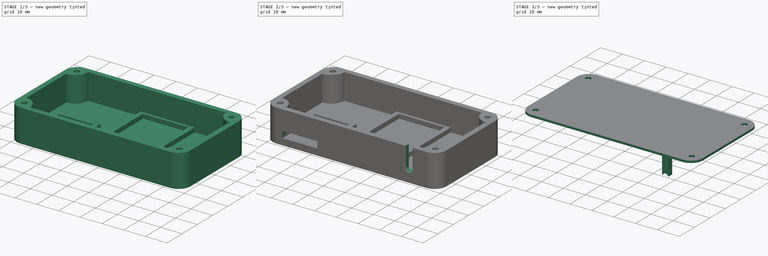
[diagram: build sequence overview — one tinted view per stage of 3, left to right]
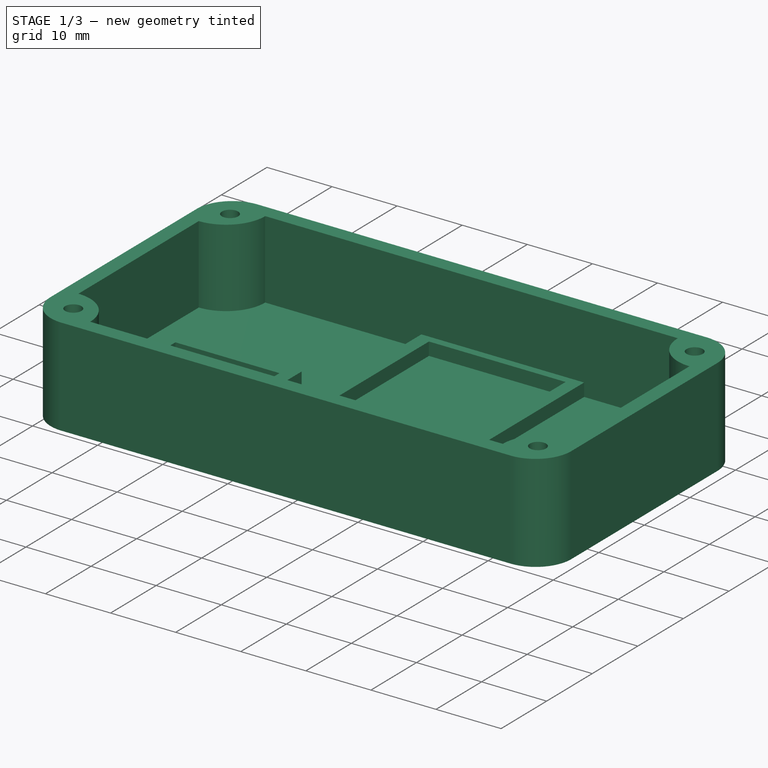
[diagram: stage 1 of 3 — iso view after this stage's code; geometry added in this stage tinted green]
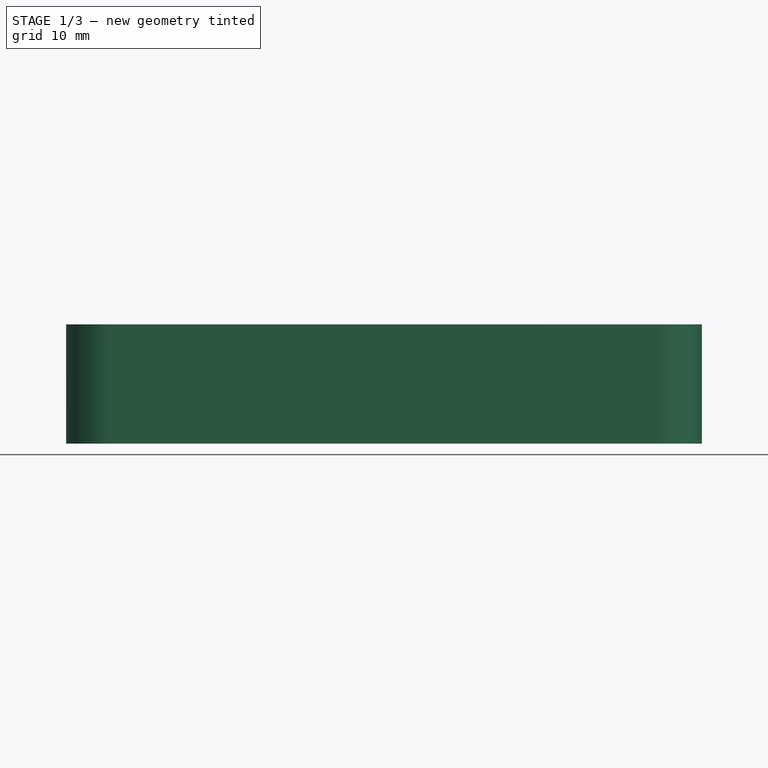
[diagram: stage 1 of 3 — front view after this stage's code; geometry added in this stage tinted green]
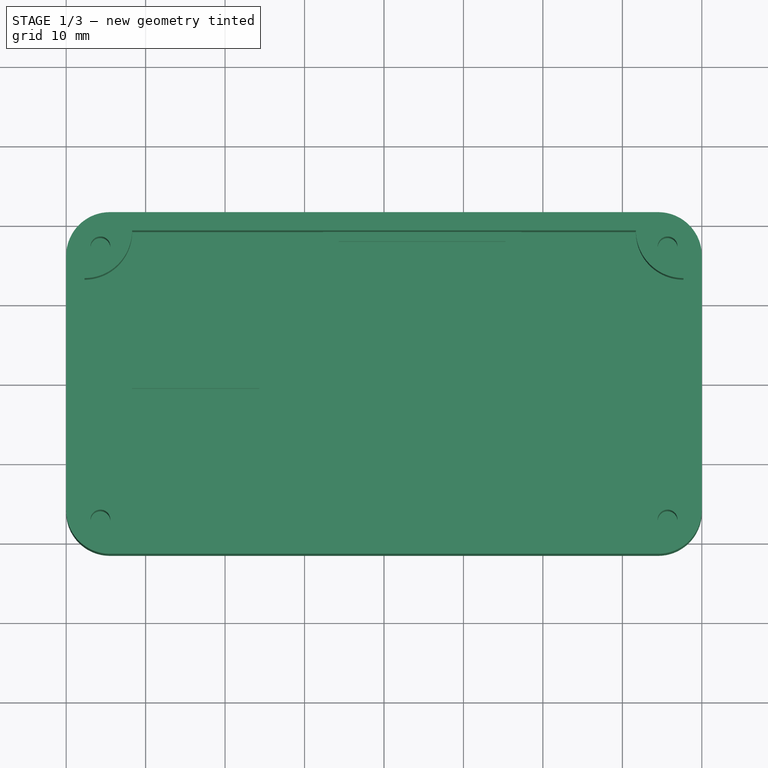
[diagram: stage 1 of 3 — top view after this stage's code; geometry added in this stage tinted green]
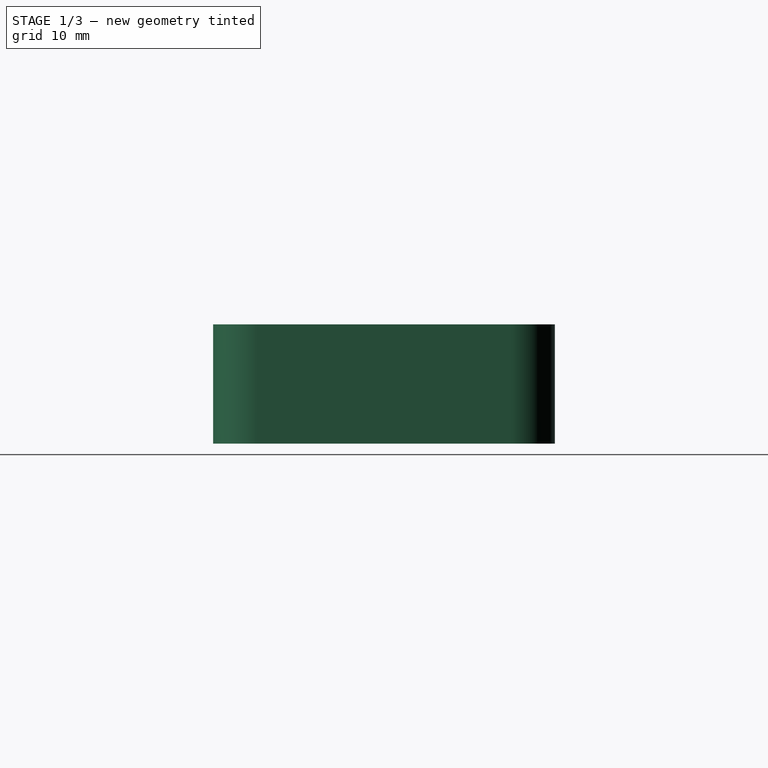
[diagram: stage 1 of 3 — right view after this stage's code; geometry added in this stage tinted green]
FCSTD DOCUMENT  (FreeCAD 1.0R39109 (Git))
Label: cat_interface_enclosure_2ndtry
License: All rights reserved
LicenseURL: https://en.wikipedia.org/wiki/All_rights_reserved
objects: Sketcher::SketchObject×7, PartDesign::Pad×6, PartDesign::Body×2, PartDesign::SubShapeBinder×2, Spreadsheet::Sheet×1, PartDesign::Pocket×1, PartDesign::Fillet×1
note: 42 computed .brp shape members not serialized (recipe doc carries the construction recipe); baked Part::Feature solids carry a one-line shape summary decoded from their .brp

FEATURE [Sketcher::SketchObject] Sketch
  ArcFitTolerance = 1e-06
  AttachmentSupport = -> [XY_Plane]
  FullyConstrained = true
  MakeInternals = false
  MapMode = 5
  expr: Constraints[19] = Spreadsheet.fillet_radius
  expr: Constraints[21] = Spreadsheet.width
  expr: Constraints[22] = Spreadsheet.length
  sketch-geometry (10):
    g0: LineSegment StartX=-40 StartY=16 StartZ=0 EndX=-40 EndY=-16 EndZ=0
    g1: LineSegment StartX=-34.5 StartY=-21.5 StartZ=0 EndX=34.5 EndY=-21.5 EndZ=0
    g2: LineSegment StartX=40 StartY=-16 StartZ=0 EndX=40 EndY=16 EndZ=0
    g3: LineSegment StartX=34.5 StartY=21.5 StartZ=0 EndX=-34.5 EndY=21.5 EndZ=0
    g4: ArcOfCircle CenterX=-34.5 CenterY=16 CenterZ=0 NormalX=0 NormalY=0 NormalZ=1 AngleXU=0 Radius=5.5 StartAngle=1.5708 EndAngle=3.14159
    g5: ArcOfCircle CenterX=-34.5 CenterY=-16 CenterZ=0 NormalX=0 NormalY=0 NormalZ=1 AngleXU=0 Radius=5.5 StartAngle=3.14159 EndAngle=4.71239
    g6: ArcOfCircle CenterX=34.5 CenterY=-16 CenterZ=0 NormalX=0 NormalY=0 NormalZ=1 AngleXU=0 Radius=5.5 StartAngle=4.71239 EndAngle=6.28319
    g7: ArcOfCircle CenterX=34.5 CenterY=16 CenterZ=0 NormalX=0 NormalY=0 NormalZ=1 AngleXU=0 Radius=5.5 StartAngle=2.8e-15 EndAngle=1.5708
    g8: GeomPoint [constr] X=-40 Y=21.5 Z=0
    g9: GeomPoint [constr] X=40 Y=-21.5 Z=0
  constraints (23):
    c: Tangent(g0,g4) = -1.5708
    c: Tangent(g0,g5) = -1.5708
    c: Tangent(g1,g5) = -1.5708
    c: Tangent(g1,g6) = -1.5708
    c: Tangent(g2,g6) = -1.5708
    c: Tangent(g2,g7) = -1.5708
    c: Tangent(g3,g7) = -1.5708
    c: Tangent(g3,g4) = -1.5708
    c: Vertical(g0)
    c: Vertical(g2)
    c: Horizontal(g1)
    c: Horizontal(g3)
    c: Equal(g4,g5)
    c: Equal(g5,g6)
    c: Equal(g6,g7)
    c: PointOnObject(g8,g0)
    c: PointOnObject(g8,g3)
    c: PointOnObject(g9,g1)
    c: PointOnObject(g9,g2)
    c: Radius(g5) = 5.5
    c: Symmetric(g8,g9,g-1)
    c: DistanceX(g0,g2) = 80
    c: DistanceY(g1,g3) = 43
FEATURE [Spreadsheet::Sheet] Spreadsheet
  cells = A1='width; B1(width)==80 mm; A2='length; B2(length)==43 mm; A3='fillet_radius; B3(fillet_radius)==5.5 mm; A4='wall_thickness; B4(wall_thickness)==2.3 mm; A5='bottom_thickness; B5(bottom_thickness)==3 mm; A6='height; B6(height)==15 mm; A7='hole_post_radius; B7(hole_post_radius)==6 mm; A8='screw_hole_diameter; B8(screw_hole_diameter)==2.5 mm; C8='for "selv-tapping" av M3-skruer; A9='usb_board_width; B9(usb_board_width)==16 mm; A10='usb_board_length; B10(usb_board_length)==21 mm; A11='usb_board_opening_height; B11(usb_board_opening_height)==3 mm; A12='usb_support_wall_thickness; B12(usb_support_wall_thickness)==2 mm; A13='compressed_cable_thickness; B13(compressed_cable_thickness)==3.1 mm; A14='uncompressed_cable_thickness; B14(uncompressed_cable_thickness)==3.7 mm; A16='lid_to_bottom_tolerance; B16(lid_to_bottom_tolerance)==0.2 mm; A17='lid_thickness; B17(lid_thickness)==2 mm; A18='lid_edge_thickness; B18(lid_edge_thickness)==1 mm; A19='lid_slit_closer_tolerance; B19(lid_slit_closer_tolerance)==0.1 mm; A21='lid_display_levitation; B21(lid_display_levitation)==0 mm
FEATURE [PartDesign::Pad] Pad
  Direction = (0,0,1)
  Length = 3
  Length2 = 10
  Profile = -> Sketch
  ReferenceAxis = -> Sketch [N_Axis]
  Refine = true
  Suppressed = false
  Type = 0
  expr: Length = Spreadsheet.bottom_thickness
FEATURE [Sketcher::SketchObject] Sketch001
  ArcFitTolerance = 1e-06
  AttachmentSupport = -> [XY_Plane]
  FullyConstrained = true
  MakeInternals = false
  MapMode = 5
  expr: Constraints[19] = Spreadsheet.fillet_radius
  expr: Constraints[21] = Spreadsheet.length
  expr: Constraints[22] = Spreadsheet.width
  expr: Constraints[32] = Spreadsheet.wall_thickness
  expr: Constraints[33] = Spreadsheet.wall_thickness
  expr: Constraints[72] = Spreadsheet.screw_hole_diameter
  sketch-geometry (30):
    g0: LineSegment StartX=-40 StartY=16 StartZ=0 EndX=-40 EndY=-16 EndZ=0
    g1: LineSegment StartX=-34.5 StartY=-21.5 StartZ=0 EndX=34.5 EndY=-21.5 EndZ=0
    g2: LineSegment StartX=40 StartY=-16 StartZ=0 EndX=40 EndY=16 EndZ=0
    g3: LineSegment StartX=34.5 StartY=21.5 StartZ=0 EndX=-34.5 EndY=21.5 EndZ=0
    g4: ArcOfCircle CenterX=-34.5 CenterY=16 CenterZ=0 NormalX=0 NormalY=0 NormalZ=1 AngleXU=0 Radius=5.5 StartAngle=1.5708 EndAngle=3.14159
    g5: ArcOfCircle CenterX=-34.5 CenterY=-16 CenterZ=0 NormalX=0 NormalY=0 NormalZ=1 AngleXU=0 Radius=5.5 StartAngle=3.14159 EndAngle=4.71239
    g6: ArcOfCircle CenterX=34.5 CenterY=-16 CenterZ=0 NormalX=0 NormalY=0 NormalZ=1 AngleXU=0 Radius=5.5 StartAngle=4.71239 EndAngle=6.28319
    g7: ArcOfCircle CenterX=34.5 CenterY=16 CenterZ=0 NormalX=0 NormalY=0 NormalZ=1 AngleXU=0 Radius=5.5 StartAngle=0 EndAngle=1.5708
    g8: GeomPoint [constr] X=-40 Y=21.5 Z=0
    g9: GeomPoint [constr] X=40 Y=-21.5 Z=0
    g10: LineSegment [constr] StartX=-37.7 StartY=19.2 StartZ=0 EndX=-37.7 EndY=-19.2 EndZ=0
    g11: LineSegment [constr] StartX=-37.7 StartY=-19.2 StartZ=0 EndX=37.7 EndY=-19.2 EndZ=0
    g12: LineSegment [constr] StartX=37.7 StartY=-19.2 StartZ=0 EndX=37.7 EndY=19.2 EndZ=0
    g13: LineSegment [constr] StartX=37.7 StartY=19.2 StartZ=0 EndX=-37.7 EndY=19.2 EndZ=0
    g14: ArcOfCircle CenterX=-37.7 CenterY=-19.2 CenterZ=0 NormalX=0 NormalY=0 NormalZ=1 AngleXU=0 Radius=6 StartAngle=1e-16 EndAngle=1.5708
    g15: LineSegment [constr] StartX=-40 StartY=-16 StartZ=0 EndX=-35.6931 EndY=-17.1931 EndZ=0
    g16: LineSegment [constr] StartX=-37.7 StartY=-13.2 StartZ=0 EndX=-35.6931 EndY=-17.1931 EndZ=0
    g17: LineSegment [constr] StartX=-31.7 StartY=-19.2 StartZ=0 EndX=-35.6931 EndY=-17.1931 EndZ=0
    g18: LineSegment [constr] StartX=-34.5 StartY=-21.5 StartZ=0 EndX=-35.6931 EndY=-17.1931 EndZ=0
    g19: ArcOfCircle CenterX=-37.7 CenterY=19.2 CenterZ=0 NormalX=0 NormalY=0 NormalZ=1 AngleXU=0 Radius=6 StartAngle=4.71239 EndAngle=6.28319
    g20: ArcOfCircle CenterX=37.7 CenterY=-19.2 CenterZ=0 NormalX=0 NormalY=0 NormalZ=1 AngleXU=0 Radius=6 StartAngle=1.5708 EndAngle=3.14159
    g21: ArcOfCircle CenterX=37.7 CenterY=19.2 CenterZ=0 NormalX=0 NormalY=0 NormalZ=1 AngleXU=0 Radius=6 StartAngle=3.14159 EndAngle=4.71239
    g22: LineSegment StartX=-37.7 StartY=-13.2 StartZ=0 EndX=-37.7 EndY=13.2 EndZ=0
    g23: LineSegment StartX=-31.7 StartY=19.2 StartZ=0 EndX=31.7 EndY=19.2 EndZ=0
    g24: LineSegment StartX=37.7 StartY=13.2 StartZ=0 EndX=37.7 EndY=-13.2 EndZ=0
    g25: LineSegment StartX=31.7 StartY=-19.2 StartZ=0 EndX=-31.7 EndY=-19.2 EndZ=0
    g26: Circle CenterX=-35.6931 CenterY=-17.1931 CenterZ=0 NormalX=0 NormalY=0 NormalZ=1 AngleXU=0 Radius=1.25
    g27: Circle CenterX=35.6931 CenterY=-17.1931 CenterZ=0 NormalX=0 NormalY=0 NormalZ=1 AngleXU=0 Radius=1.25
    g28: Circle CenterX=-35.6931 CenterY=17.1931 CenterZ=0 NormalX=0 NormalY=0 NormalZ=1 AngleXU=0 Radius=1.25
    g29: Circle CenterX=35.6931 CenterY=17.1931 CenterZ=0 NormalX=0 NormalY=0 NormalZ=1 AngleXU=0 Radius=1.25
  constraints (76):
    c: Tangent(g0,g4) = -1.5708
    c: Tangent(g0,g5) = -1.5708
    c: Tangent(g1,g5) = -1.5708
    c: Tangent(g1,g6) = -1.5708
    c: Tangent(g2,g6) = -1.5708
    c: Tangent(g2,g7) = -1.5708
    c: Tangent(g3,g7) = -1.5708
    c: Tangent(g3,g4) = -1.5708
    c: Vertical(g0)
    c: Vertical(g2)
    c: Horizontal(g1)
    c: Horizontal(g3)
    c: Equal(g4,g5)
    c: Equal(g5,g6)
    c: Equal(g6,g7)
    c: PointOnObject(g8,g0)
    c: PointOnObject(g8,g3)
    c: PointOnObject(g9,g1)
    c: PointOnObject(g9,g2)
    c: Radius(g5) = 5.5
    c: Symmetric(g8,g9,g-1)
    c: DistanceY(g1,g3) = 43
    c: DistanceX(g0,g2) = 80
    c: Coincident(g10,g11)
    c: Coincident(g11,g12)
    c: Coincident(g12,g13)
    c: Coincident(g13,g10)
    c: Vertical(g10)
    c: Vertical(g12)
    c: Horizontal(g11)
    c: Horizontal(g13)
    c: Symmetric(g10,g11,g-1)
    c: Distance(g0,g10) = 2.3
    c: Distance(g3,g13) = 2.3
    c: Coincident(g14,g10)
    c: PointOnObject(g14,g11)
    c: PointOnObject(g14,g10)
    c: Distance(g10,g14) = 6
    c: Coincident(g15,g0)
    c: Coincident(g16,g14)
    c: Coincident(g16,g15)
    c: Coincident(g17,g14)
    c: Coincident(g17,g15)
    c: Coincident(g18,g1)
    c: Coincident(g18,g15)
    c: Equal(g17,g18)
    c: Equal(g18,g16)
    c: Coincident(g22,g14)
    c: Coincident(g22,g19)
    c: Coincident(g23,g19)
    c: Coincident(g23,g21)
    c: Coincident(g24,g21)
    c: Coincident(g24,g20)
    c: Vertical(g24)
    c: Coincident(g25,g20)
    c: Coincident(g25,g14) = 3
    c: Coincident(g26,g15)
    c: Symmetric(g14,g21,g-1)
    c: Symmetric(g14,g21,g-1)
    c: Symmetric(g14,g19,g-1)
    c: Equal(g22,g24)
    c: Symmetric(g14,g20,g-2)
    c: Symmetric(g21,g19,g-2)
    c: Equal(g14,g19)
    c: Equal(g14,g20)
    c: Equal(g14,g21)
    c: Symmetric(g28,g15,g-1)
    c: Symmetric(g29,g15,g-1)
    c: Symmetric(g15,g27,g-2)
    c: Equal(g26,g28)
    c: Equal(g26,g27)
    c: Equal(g26,g29)
    c: Diameter(g26) = 2.5
    c: Distance(g25,g-1) = 19.2  'front_innerwall_coord'
    c: Distance(g14,g-2) = 31.7  'y_distance_to_corner_support'
    c: Distance(g1,g-1) = 21.5  'front_outerwalll_coord'
FEATURE [PartDesign::Pad] Pad001
  BaseFeature = -> Pad
  Direction = (0,0,1)
  Length = 15
  Length2 = 10
  Profile = -> Sketch001
  ReferenceAxis = -> Sketch001 [N_Axis]
  Refine = true
  Suppressed = false
  Type = 0
  expr: Length = Spreadsheet.height
FEATURE [Sketcher::SketchObject] Sketch002
  ArcFitTolerance = 1e-06
  AttachmentSupport = -> [Pad001]
  FullyConstrained = true
  MakeInternals = false
  MapMode = 5
  Placement = pos=(0,0,3) rot=(0,0,1;0rad)
  expr: Constraints[17] = 2 mm
  expr: Constraints[18] = Spreadsheet.usb_board_width
  expr: Constraints[19] = Spreadsheet.usb_board_length
  expr: Constraints[20] = Sketch001.Constraints.y_distance_to_corner_support
  expr: Constraints[21] = Sketch001.Constraints.front_outerwalll_coord
  expr: Constraints[22] = Sketch001.Constraints.y_distance_to_corner_support + Spreadsheet.usb_support_wall_thickness
  expr: Constraints[66] = Spreadsheet.usb_support_wall_thickness
  expr: Constraints[67] = Spreadsheet.usb_support_wall_thickness
  sketch-geometry (27):
    g0: LineSegment StartX=-31.7 StartY=-21.5 StartZ=0 EndX=-33.7 EndY=-21.5 EndZ=0
    g1: LineSegment StartX=-33.7 StartY=-21.5 StartZ=0 EndX=-33.7 EndY=1.5 EndZ=0
    g2: LineSegment StartX=-33.7 StartY=1.5 StartZ=0 EndX=-13.7 EndY=1.5 EndZ=0
    g3: LineSegment StartX=-13.7 StartY=1.5 StartZ=0 EndX=-13.7 EndY=-21.5 EndZ=0
    g4: LineSegment StartX=-13.7 StartY=-21.5 StartZ=0 EndX=-15.7 EndY=-21.5 EndZ=0
    g5: LineSegment StartX=-15.7 StartY=-21.5 StartZ=0 EndX=-15.7 EndY=-0.5 EndZ=0
    g6: LineSegment StartX=-15.7 StartY=-0.5 StartZ=0 EndX=-31.7 EndY=-0.5 EndZ=0
    g7: LineSegment StartX=-31.7 StartY=-0.5 StartZ=0 EndX=-31.7 EndY=-21.5 EndZ=0
    g8: LineSegment [constr] StartX=-31.7 StartY=-0.5 StartZ=0 EndX=-23.7 EndY=-0.5 EndZ=0
    g9: LineSegment [constr] StartX=-23.7 StartY=-0.5 StartZ=0 EndX=-15.7 EndY=-0.5 EndZ=0
    g10: LineSegment [constr] StartX=-33.7 StartY=1.5 StartZ=0 EndX=-23.7 EndY=-0.5 EndZ=0
    g11: LineSegment [constr] StartX=-23.7 StartY=-0.5 StartZ=0 EndX=-13.7 EndY=1.5 EndZ=0
    g12: LineSegment StartX=-5.7 StartY=18 StartZ=0 EndX=-5.7 EndY=-18 EndZ=0
    g13: LineSegment StartX=-5.7 StartY=-18 StartZ=0 EndX=15.3 EndY=-18 EndZ=0
    g14: LineSegment StartX=15.3 StartY=-18 StartZ=0 EndX=15.3 EndY=18 EndZ=0
    g15: LineSegment StartX=15.3 StartY=18 StartZ=0 EndX=-5.7 EndY=18 EndZ=0
    g16: LineSegment [constr] StartX=-5.7 StartY=-18 StartZ=0 EndX=4.8 EndY=0 EndZ=0
    g17: LineSegment [constr] StartX=4.8 StartY=0 StartZ=0 EndX=15.3 EndY=18 EndZ=0
    g18: LineSegment [constr] StartX=4.8 StartY=0 StartZ=0 EndX=-5.7 EndY=18 EndZ=0
    g19: LineSegment StartX=-7.7 StartY=20 StartZ=0 EndX=-7.7 EndY=-20 EndZ=0
    g20: LineSegment StartX=-7.7 StartY=-20 StartZ=0 EndX=17.3 EndY=-20 EndZ=0
    g21: LineSegment StartX=17.3 StartY=-20 StartZ=0 EndX=17.3 EndY=20 EndZ=0
    g22: LineSegment StartX=17.3 StartY=20 StartZ=0 EndX=-7.7 EndY=20 EndZ=0
    g23: LineSegment [constr] StartX=4.8 StartY=0 StartZ=0 EndX=-7.7 EndY=20 EndZ=0
    g24: LineSegment [constr] StartX=4.8 StartY=0 StartZ=0 EndX=17.3 EndY=20 EndZ=0
    g25: LineSegment [constr] StartX=4.8 StartY=0 StartZ=0 EndX=17.3 EndY=-20 EndZ=0
    g26: LineSegment [constr] StartX=0 StartY=0 StartZ=0 EndX=4.8 EndY=0 EndZ=0
  constraints (72):
    c: Horizontal(g0)
    c: Coincident(g0,g1)
    c: Vertical(g1)
    c: Coincident(g1,g2)
    c: Horizontal(g2)
    c: Coincident(g2,g3)
    c: Vertical(g3)
    c: Coincident(g3,g4)
    c: Horizontal(g4)
    c: Coincident(g4,g5)
    c: Vertical(g5)
    c: Coincident(g5,g6)
    c: Horizontal(g6)
    c: Coincident(g6,g7)
    c: Coincident(g7,g0)
    c: Vertical(g7)
    c: Equal(g1,g3)
    c: Distance(g2,g6) = 2
    c: Distance(g5,g7) = 16
    c: Distance(g6,g0) = 21
    c: Distance(g0,g-2) = 31.7
    c: Distance(g-1,g4) = 21.5
    c: Distance(g-2,g1) = 33.7
    c: Coincident(g8,g6)
    c: Coincident(g9,g8)
    c: Coincident(g9,g5)
    c: Equal(g8,g9)
    c: PointOnObject(g8,g6)
    c: Coincident(g10,g1)
    c: Coincident(g10,g8)
    c: Coincident(g11,g8)
    c: Coincident(g11,g2)
    c: Equal(g10,g11)
    c: Coincident(g12,g13)
    c: Coincident(g13,g14)
    c: Coincident(g14,g15)
    c: Coincident(g15,g12)
    c: Vertical(g12)
    c: Vertical(g14)
    c: Horizontal(g13)
    c: Horizontal(g15)
    c: Distance(g12,g14) = 21
    c: Distance(g13,g15) = 36
    c: Coincident(g16,g12)
    c: Coincident(g17,g16)
    c: Coincident(g17,g14)
    c: Coincident(g18,g16)
    c: Coincident(g18,g12)
    c: Equal(g17,g18)
    c: Equal(g18,g16)
    c: Coincident(g19,g20)
    c: Coincident(g20,g21)
    c: Coincident(g21,g22)
    c: Coincident(g22,g19)
    c: Vertical(g19)
    c: Vertical(g21)
    c: Horizontal(g20)
    c: Horizontal(g22)
    c: Coincident(g23,g16)
    c: Coincident(g23,g19)
    c: Coincident(g24,g16)
    c: Coincident(g24,g21)
    c: Equal(g23,g24)
    c: Coincident(g25,g16)
    c: Coincident(g25,g20)
    c: Equal(g25,g23)
    c: Distance(g22,g15) = 2
    c: Distance(g19,g12) = 2
    c: Coincident(g26,g-1)
    c: Coincident(g26,g16)
    c: Horizontal(g26)
    c: Distance(g12,g5) = 10
FEATURE [PartDesign::Pad] Pad002
  BaseFeature = -> Pad001
  Direction = (0,0,1)
  Length = 2
  Length2 = 10
  Profile = -> Sketch002
  ReferenceAxis = -> Sketch002 [N_Axis]
  Refine = true
  Suppressed = false
  Type = 0
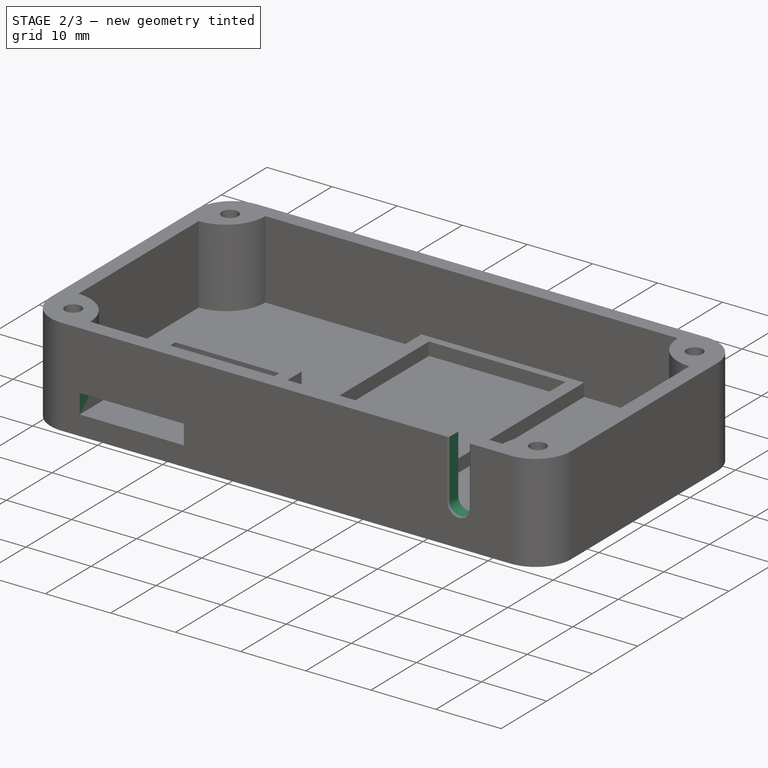
[diagram: stage 2 of 3 — iso view after this stage's code; geometry added in this stage tinted green]
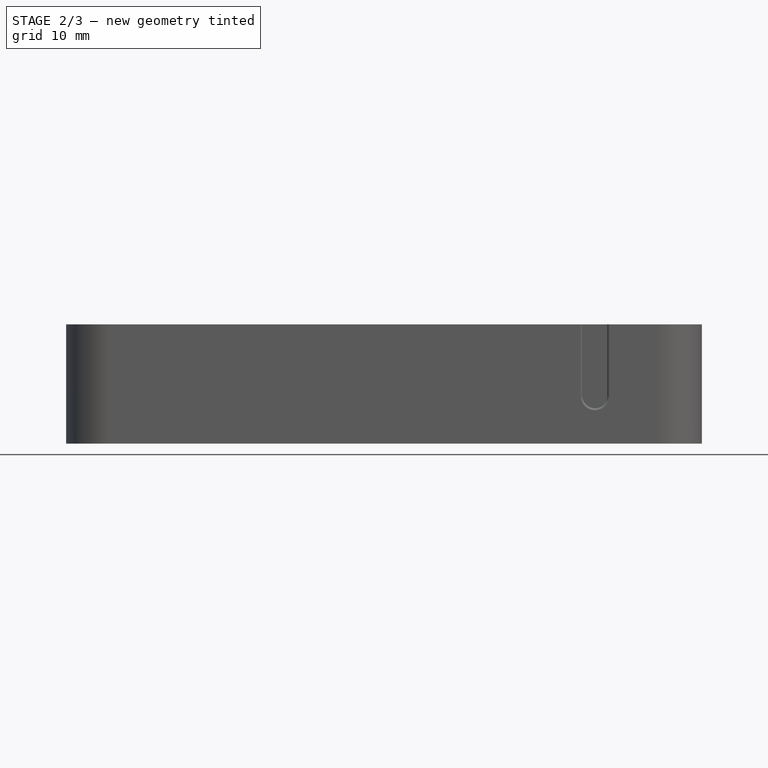
[diagram: stage 2 of 3 — front view after this stage's code; geometry added in this stage tinted green]
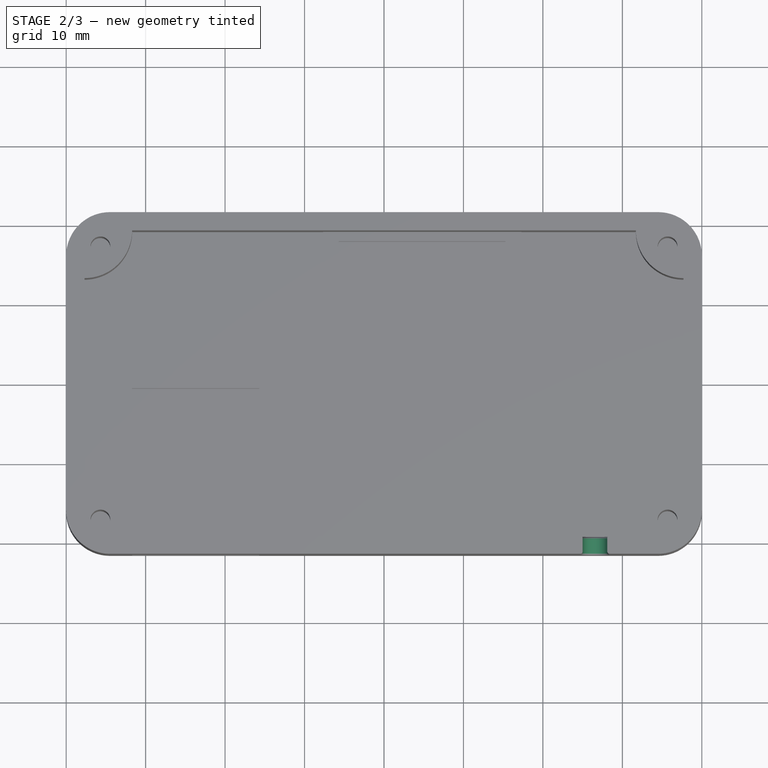
[diagram: stage 2 of 3 — top view after this stage's code; geometry added in this stage tinted green]
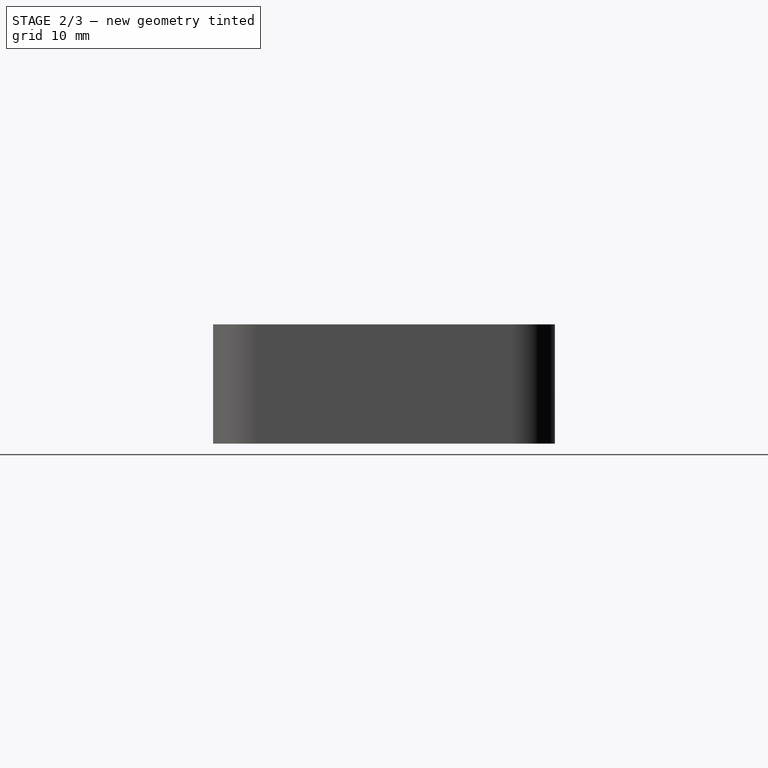
[diagram: stage 2 of 3 — right view after this stage's code; geometry added in this stage tinted green]
FEATURE [Sketcher::SketchObject] Sketch003
  ArcFitTolerance = 1e-06
  AttachmentSupport = -> [Pad002]
  FullyConstrained = true
  MakeInternals = false
  MapMode = 5
  Placement = pos=(0,-19.2,0) rot=(0,0.707107,0.707107;3.14159rad)
  expr: .Constraints.bottom_top_to_cable_center = (Spreadsheet.height - Spreadsheet.bottom_thickness) * 3 / 4
  expr: Constraints[10] = Spreadsheet.usb_board_opening_height
  expr: Constraints[11] = Spreadsheet.bottom_thickness
  expr: Constraints[19] = Spreadsheet.height
  expr: Constraints[26] = Spreadsheet.compressed_cable_thickness
  expr: Constraints[8] = Sketch001.Constraints.y_distance_to_corner_support
  expr: Constraints[9] = Spreadsheet.usb_board_width
  sketch-geometry (9):
    g0: LineSegment StartX=15.7 StartY=3 StartZ=0 EndX=31.7 EndY=3 EndZ=0
    g1: LineSegment StartX=31.7 StartY=3 StartZ=0 EndX=31.7 EndY=6 EndZ=0
    g2: LineSegment StartX=31.7 StartY=6 StartZ=0 EndX=15.7 EndY=6 EndZ=0
    g3: LineSegment StartX=15.7 StartY=6 StartZ=0 EndX=15.7 EndY=3 EndZ=0
    g4: LineSegment StartX=-28.1 StartY=6 StartZ=0 EndX=-28.1 EndY=15 EndZ=0
    g5: LineSegment StartX=-28.1 StartY=15 StartZ=0 EndX=-25 EndY=15 EndZ=0
    g6: LineSegment StartX=-25 StartY=15 StartZ=0 EndX=-25 EndY=6 EndZ=0
    g7: ArcOfCircle CenterX=-26.55 CenterY=6 CenterZ=0 NormalX=0 NormalY=0 NormalZ=1 AngleXU=0 Radius=1.55 StartAngle=3.14159 EndAngle=6.28319
    g8: LineSegment [constr] StartX=-28.1 StartY=6 StartZ=0 EndX=-26.55 EndY=6 EndZ=0
  constraints (27):
    c: Coincident(g0,g1)
    c: Coincident(g1,g2)
    c: Coincident(g2,g3)
    c: Coincident(g3,g0)
    c: Horizontal(g0)
    c: Horizontal(g2)
    c: Vertical(g1)
    c: Vertical(g3)
    c: Distance(g1,g-2) = 31.7
    c: Distance(g1,g3) = 16
    c: Distance(g2,g0) = 3
    c: Distance(g-1,g0) = 3
    c: Vertical(g4)
    c: Coincident(g4,g5)
    c: Horizontal(g5)
    c: Coincident(g5,g6)
    c: Vertical(g6)
    c: Coincident(g7,g6)
    c: Coincident(g4,g7)
    c: Distance(g-1,g5) = 15
    c: Equal(g4,g6)
    c: Coincident(g8,g4)
    c: Coincident(g8,g7)
    c: Horizontal(g8)
    c: DistanceY(g6,g6) = 9  'bottom_top_to_cable_center'
    c: Distance(g6,g-2) = 25  'cable_slit_distance_from_z_axis'
    c: Distance(g4,g6) = 3.1
FEATURE [PartDesign::Pocket] Pocket
  BaseFeature = -> Pad002
  Direction = (0,-1,2e-16)
  Length = 5
  Length2 = 5
  Profile = -> Sketch003
  ReferenceAxis = -> Sketch003 [N_Axis]
  Refine = true
  Suppressed = false
  Type = 2
FEATURE [PartDesign::Fillet] Fillet
  Base = -> Pocket [Edge48,Edge37]
  BaseFeature = -> Pocket
  Radius = 0.3
  Refine = true
  SupportTransform = false
  Suppressed = false
  UseAllEdges = false
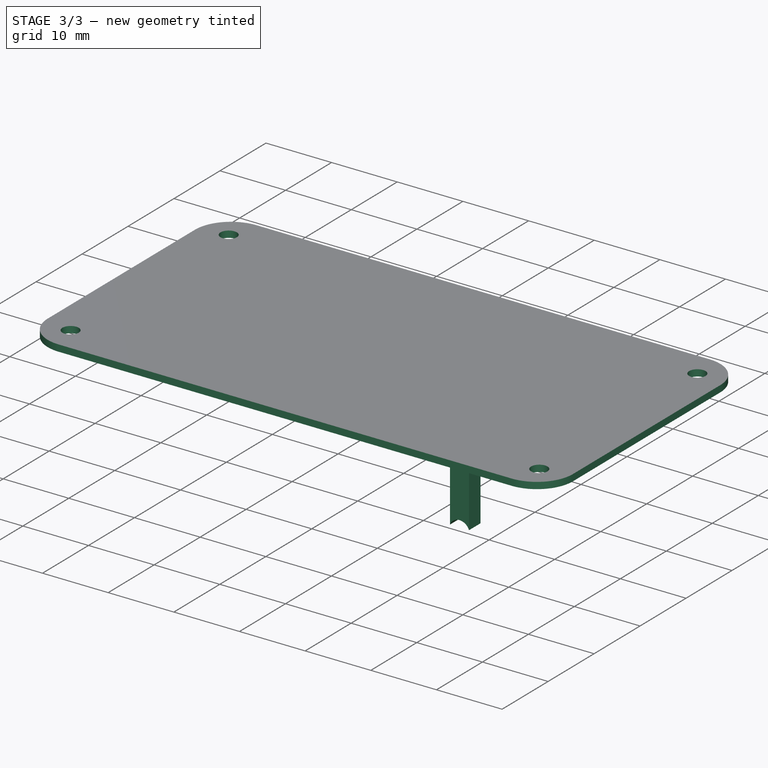
[diagram: stage 3 of 3 — iso view after this stage's code; geometry added in this stage tinted green]
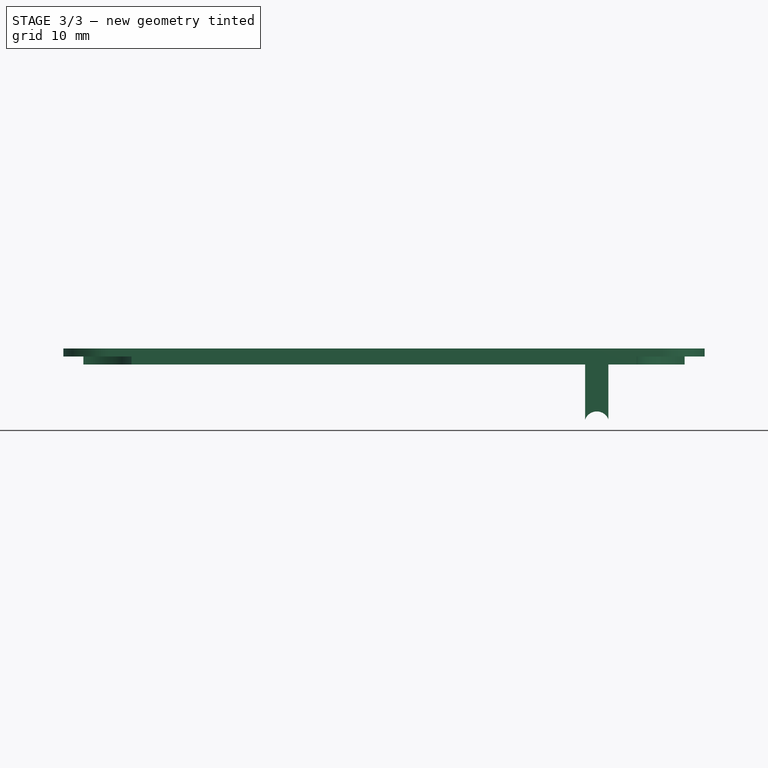
[diagram: stage 3 of 3 — front view after this stage's code; geometry added in this stage tinted green]
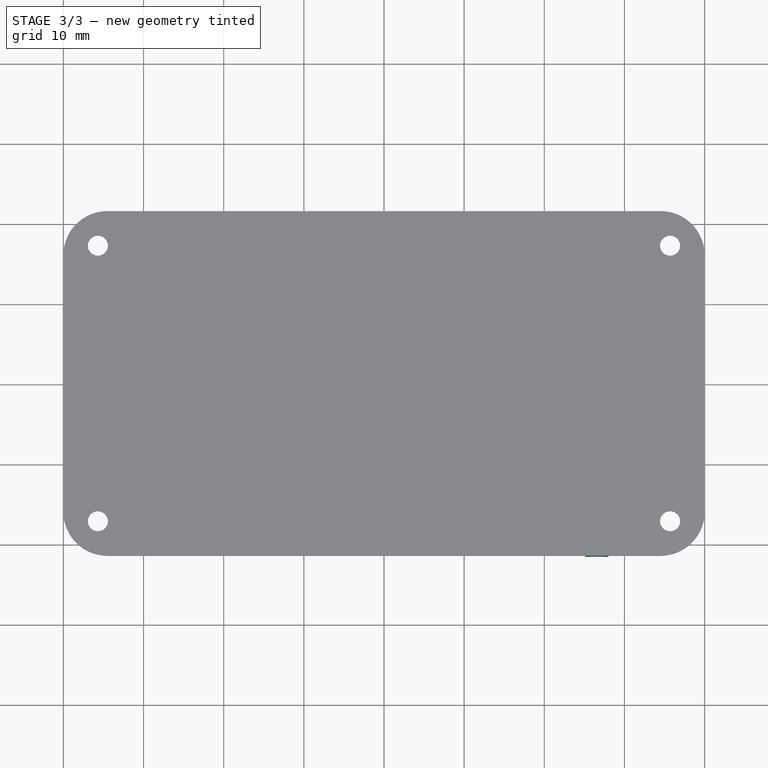
[diagram: stage 3 of 3 — top view after this stage's code; geometry added in this stage tinted green]
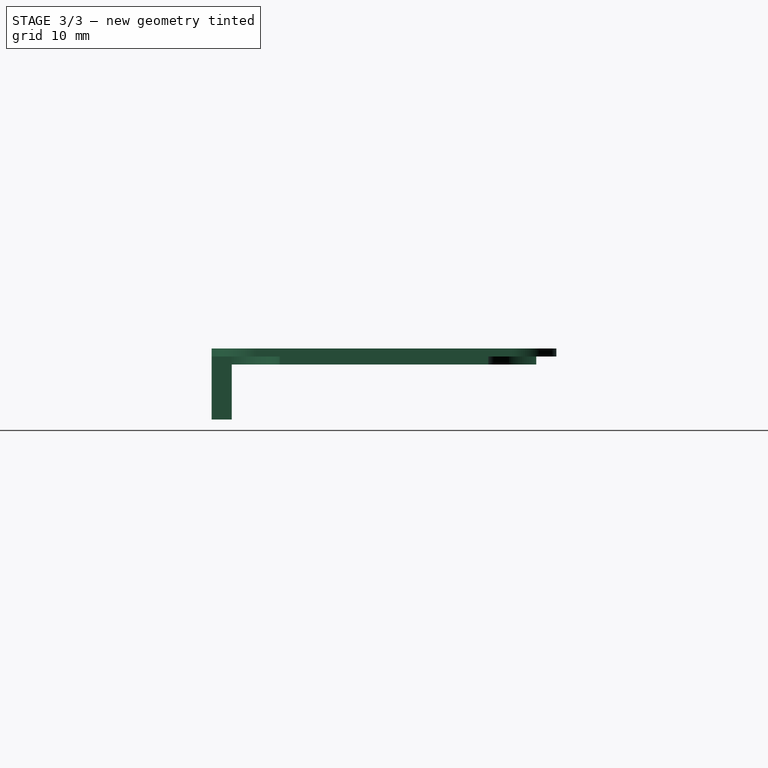
[diagram: stage 3 of 3 — right view after this stage's code; geometry added in this stage tinted green]
FEATURE [PartDesign::Body] Body  label="Enclosure_bottom"
  AllowCompound = false
  Group = -> [Sketch,Pad,Sketch001,Pad001,Sketch002,Pad002,Sketch003,Pocket,Fillet]
  Origin = -> Origin
  Tip = -> Fillet
FEATURE [PartDesign::SubShapeBinder] Binder  label="Enclosure_bottom_binder"
  BindCopyOnChange = 0
  BindMode = 0
  ClaimChildren = false
  Context = -> Body001 [Binder.]
  Fuse = false
  MakeFace = true
  OffsetFill = false
  OffsetIntersection = false
  OffsetJoinType = 0
  OffsetOpenResult = false
  PartialLoad = false
  Refine = true
  Relative = true
  Support = -> [Body[Sketch001.Edge9,Sketch001.Edge17,Sketch001.Edge10,Sketch001.Edge16,Sketch001.Edge19,Sketch001.Edge11,Sketch001.Edge12,Sketch001.Edge13]]
  _Version = 2
FEATURE [Sketcher::SketchObject] Sketch004
  ArcFitTolerance = 1e-06
  AttachmentSupport = -> [XY_Plane001]
  ExternalGeometry = -> [Binder]
  FullyConstrained = true
  MakeInternals = false
  MapMode = 5
  sketch-geometry (14):
    g0: LineSegment StartX=-40 StartY=16 StartZ=0 EndX=-40 EndY=-16 EndZ=0
    g1: LineSegment StartX=-34.5 StartY=-21.5 StartZ=0 EndX=34.5 EndY=-21.5 EndZ=0
    g2: LineSegment StartX=40 StartY=-16 StartZ=0 EndX=40 EndY=16 EndZ=0
    g3: LineSegment StartX=34.5 StartY=21.5 StartZ=0 EndX=-34.5 EndY=21.5 EndZ=0
    g4: ArcOfCircle CenterX=-34.5 CenterY=16 CenterZ=0 NormalX=0 NormalY=0 NormalZ=1 AngleXU=0 Radius=5.5 StartAngle=1.5708 EndAngle=3.14159
    g5: ArcOfCircle CenterX=-34.5 CenterY=-16 CenterZ=0 NormalX=0 NormalY=0 NormalZ=1 AngleXU=0 Radius=5.5 StartAngle=3.14159 EndAngle=4.71239
    g6: ArcOfCircle CenterX=34.5 CenterY=-16 CenterZ=0 NormalX=0 NormalY=0 NormalZ=1 AngleXU=0 Radius=5.5 StartAngle=4.71239 EndAngle=6.28319
    g7: ArcOfCircle CenterX=34.5 CenterY=16 CenterZ=0 NormalX=0 NormalY=0 NormalZ=1 AngleXU=0 Radius=5.5 StartAngle=0 EndAngle=1.5708
    g8: GeomPoint [constr] X=-40 Y=21.5 Z=0
    g9: GeomPoint [constr] X=40 Y=-21.5 Z=0
    g10: Circle CenterX=-35.6931 CenterY=-17.1931 CenterZ=0 NormalX=0 NormalY=0 NormalZ=1 AngleXU=0 Radius=1.25
    g11: Circle CenterX=-35.6931 CenterY=17.1931 CenterZ=0 NormalX=0 NormalY=0 NormalZ=1 AngleXU=0 Radius=1.25
    g12: Circle CenterX=35.6931 CenterY=17.1931 CenterZ=0 NormalX=0 NormalY=0 NormalZ=1 AngleXU=0 Radius=1.25
    g13: Circle CenterX=35.6931 CenterY=-17.1931 CenterZ=0 NormalX=0 NormalY=0 NormalZ=1 AngleXU=0 Radius=1.25
  constraints (30):
    c: Tangent(g0,g4) = -1.5708
    c: Tangent(g0,g5) = -1.5708
    c: Tangent(g1,g5) = -1.5708
    c: Tangent(g1,g6) = -1.5708
    c: Tangent(g2,g6) = -1.5708
    c: Tangent(g2,g7) = -1.5708
    c: Tangent(g3,g7) = -1.5708
    c: Tangent(g3,g4) = -1.5708
    c: Vertical(g0)
    c: Vertical(g2)
    c: Horizontal(g1)
    c: Horizontal(g3)
    c: Equal(g4,g5)
    c: Equal(g5,g6)
    c: Equal(g6,g7)
    c: PointOnObject(g8,g0)
    c: PointOnObject(g8,g3)
    c: PointOnObject(g9,g1)
    c: PointOnObject(g9,g2)
    c: Equal(g5,g-3)
    c: Coincident(g0,g-3)
    c: Coincident(g3,g-4)
    c: Coincident(g10,g-5)
    c: Equal(g10,g-5)
    c: Coincident(g11,g-6)
    c: Equal(g11,g-6)
    c: Coincident(g12,g-7)
    c: Equal(g12,g-7)
    c: Coincident(g13,g-8)
    c: Equal(g13,g-8)
FEATURE [PartDesign::Pad] Pad003
  Direction = (0,0,1)
  Length = 1
  Length2 = 10
  Profile = -> Sketch004
  ReferenceAxis = -> Sketch004 [N_Axis]
  Refine = true
  Reversed = true
  Suppressed = false
  Type = 0
  expr: Length = Spreadsheet.lid_edge_thickness
FEATURE [Sketcher::SketchObject] Sketch005
  ArcFitTolerance = 1e-06
  AttachmentSupport = -> [XY_Plane001]
  ExternalGeometry = -> [Binder]
  FullyConstrained = true
  MakeInternals = false
  MapMode = 5
  expr: Constraints[14] = Spreadsheet.hole_post_radius + Spreadsheet.lid_to_bottom_tolerance
  expr: Constraints[15] = Spreadsheet.lid_to_bottom_tolerance
  expr: Constraints[16] = Spreadsheet.lid_to_bottom_tolerance
  sketch-geometry (8):
    g0: LineSegment StartX=-37.5 StartY=13.0032 StartZ=0 EndX=-37.5 EndY=-13.0032 EndZ=0
    g1: LineSegment StartX=-31.5032 StartY=-19 StartZ=0 EndX=31.5032 EndY=-19 EndZ=0
    g2: LineSegment StartX=37.5 StartY=-13.0032 StartZ=0 EndX=37.5 EndY=13.0032 EndZ=0
    g3: LineSegment StartX=31.5032 StartY=19 StartZ=0 EndX=-31.5032 EndY=19 EndZ=0
    g4: ArcOfCircle CenterX=-37.7 CenterY=19.2 CenterZ=0 NormalX=0 NormalY=0 NormalZ=1 AngleXU=0 Radius=6.2 StartAngle=4.74465 EndAngle=6.25092
    g5: ArcOfCircle CenterX=-37.7 CenterY=-19.2 CenterZ=0 NormalX=0 NormalY=0 NormalZ=1 AngleXU=0 Radius=6.2 StartAngle=0.0322637 EndAngle=1.53853
    g6: ArcOfCircle CenterX=37.7 CenterY=-19.2 CenterZ=0 NormalX=0 NormalY=0 NormalZ=1 AngleXU=0 Radius=6.2 StartAngle=1.60306 EndAngle=3.10933
    g7: ArcOfCircle CenterX=37.7 CenterY=19.2 CenterZ=0 NormalX=0 NormalY=0 NormalZ=1 AngleXU=0 Radius=6.2 StartAngle=3.17386 EndAngle=4.68013
  constraints (24):
    c: Vertical(g0)
    c: Horizontal(g1)
    c: Vertical(g2)
    c: Horizontal(g3)
    c: Coincident(g4,g3)
    c: Coincident(g4,g0)
    c: Coincident(g5,g0)
    c: Coincident(g5,g1)
    c: Coincident(g6,g1)
    c: Coincident(g6,g2)
    c: Coincident(g4,g-3)
    c: Coincident(g-7,g6)
    c: Coincident(g7,g-9)
    c: Coincident(g3,g7)
    c: Radius(g5) = 6.2
    c: Distance(g-6,g1) = 0.2
    c: Distance(g-4,g0) = 0.2
    c: Equal(g5,g4)
    c: Equal(g7,g6)
    c: Equal(g6,g5)
    c: Coincident(g7,g2)
    c: Equal(g1,g3)
    c: Equal(g0,g2)
    c: Coincident(g5,g-5)
FEATURE [PartDesign::Pad] Pad004
  BaseFeature = -> Pad003
  Direction = (0,0,1)
  Length = 2
  Length2 = 10
  Profile = -> Sketch005
  ReferenceAxis = -> Sketch005 [N_Axis]
  Refine = true
  Reversed = true
  Suppressed = false
  Type = 0
  expr: Length = Spreadsheet.lid_thickness
FEATURE [PartDesign::SubShapeBinder] Binder001  label="Cable_slit_binder"
  BindCopyOnChange = 0
  BindMode = 0
  ClaimChildren = false
  Context = -> Body001 [Binder001.]
  Fuse = false
  MakeFace = true
  OffsetFill = false
  OffsetIntersection = false
  OffsetJoinType = 0
  OffsetOpenResult = false
  PartialLoad = false
  Refine = true
  Relative = true
  Support = -> [Body[Sketch003.Edge6,Sketch003.Edge7,Sketch003.Edge5,Sketch003.Edge8]]
  _Version = 2
FEATURE [Sketcher::SketchObject] Sketch006
  ArcFitTolerance = 1e-06
  AttachmentSupport = -> [Pad004]
  ExternalGeometry = -> [Binder001,Pad004]
  FullyConstrained = true
  MakeInternals = false
  MapMode = 5
  Placement = pos=(0,-19,0) rot=(1,0,0;1.5708rad)
  expr: Constraints[11] = Spreadsheet.compressed_cable_thickness - 2 * Spreadsheet.lid_slit_closer_tolerance
  expr: Constraints[12] = Spreadsheet.lid_slit_closer_tolerance
  expr: Constraints[7] = Sketch003.Constraints.bottom_top_to_cable_center - (Spreadsheet.uncompressed_cable_thickness - Spreadsheet.compressed_cable_thickness)
  expr: Constraints[8] = Spreadsheet.compressed_cable_thickness / 2
  sketch-geometry (4):
    g0: LineSegment StartX=25.1 StartY=-1 StartZ=0 EndX=28 EndY=-1 EndZ=0
    g1: LineSegment StartX=25.1 StartY=-1 StartZ=0 EndX=25.1 EndY=-8.85228 EndZ=0
    g2: LineSegment StartX=28 StartY=-1 StartZ=0 EndX=28 EndY=-8.85228 EndZ=0
    g3: ArcOfCircle CenterX=26.55 CenterY=-9.4 CenterZ=0 NormalX=0 NormalY=0 NormalZ=1 AngleXU=0 Radius=1.55 StartAngle=0.36117 EndAngle=2.78042
  constraints (13):
    c: Horizontal(g0)
    c: Vertical(g1)
    c: Vertical(g2)
    c: Equal(g1,g2)
    c: Coincident(g3,g1)
    c: Coincident(g3,g2)
    c: PointOnObject(g0,g-5)
    c: Distance(g3,g0) = 8.4
    c: Radius(g3) = 1.55
    c: Coincident(g1,g0)
    c: Coincident(g2,g0)
    c: Distance(g2,g1) = 2.9
    c: Distance(g1,g-4) = 0.1
FEATURE [PartDesign::Pad] Pad005
  BaseFeature = -> Pad004
  Direction = (0,-1,2e-16)
  Length = 2.5
  Length2 = 10
  Profile = -> Sketch006
  ReferenceAxis = -> Sketch006 [N_Axis]
  Refine = true
  Suppressed = false
  Type = 0
  expr: Length = Spreadsheet.wall_thickness + Spreadsheet.lid_to_bottom_tolerance
FEATURE [PartDesign::Body] Body001  label="Enclosure_lid"
  AllowCompound = false
  Group = -> [Binder,Sketch004,Pad003,Sketch005,Pad004,Binder001,Sketch006,Pad005]
  Origin = -> Origin001
  Placement = pos=(0,0,16) rot=(0,0,1;0rad)
  Tip = -> Pad005
  expr: .Placement.Base.z = Spreadsheet.height + Spreadsheet.lid_thickness - Spreadsheet.lid_edge_thickness + Spreadsheet.lid_display_levitation
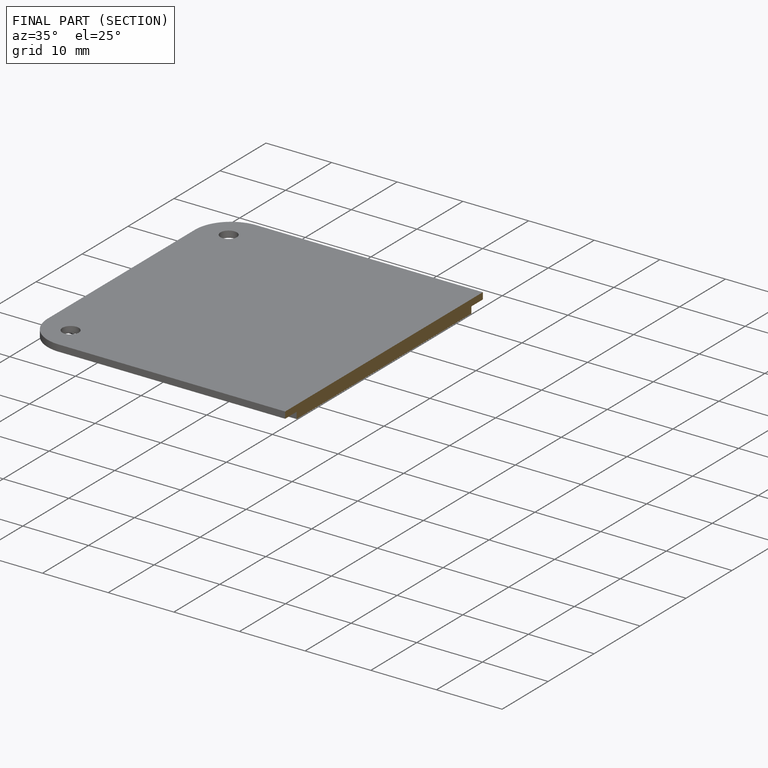
[diagram: finished part — half-section view (interior)]
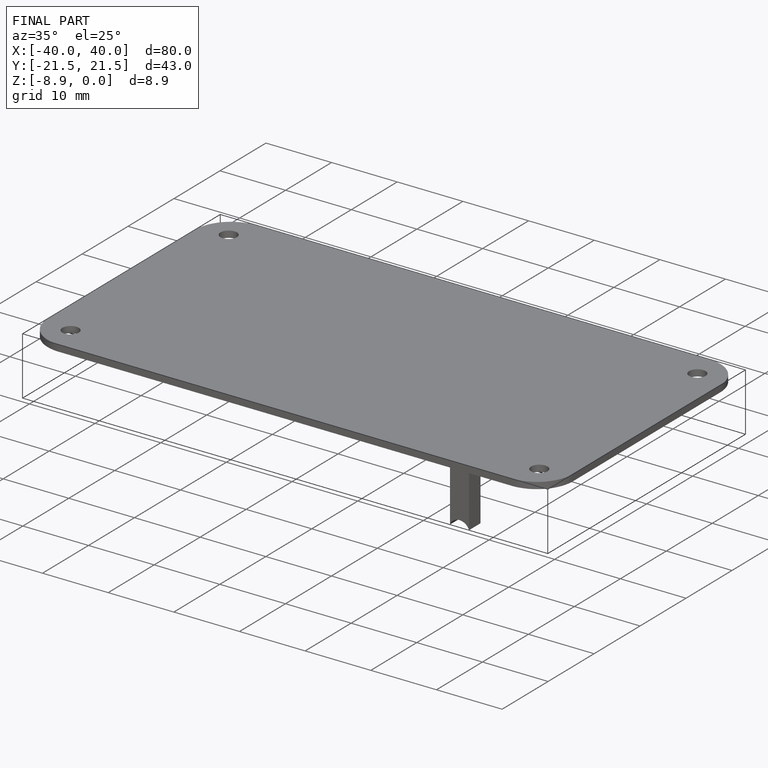
[diagram: finished part — iso view with bounding-box wireframe]
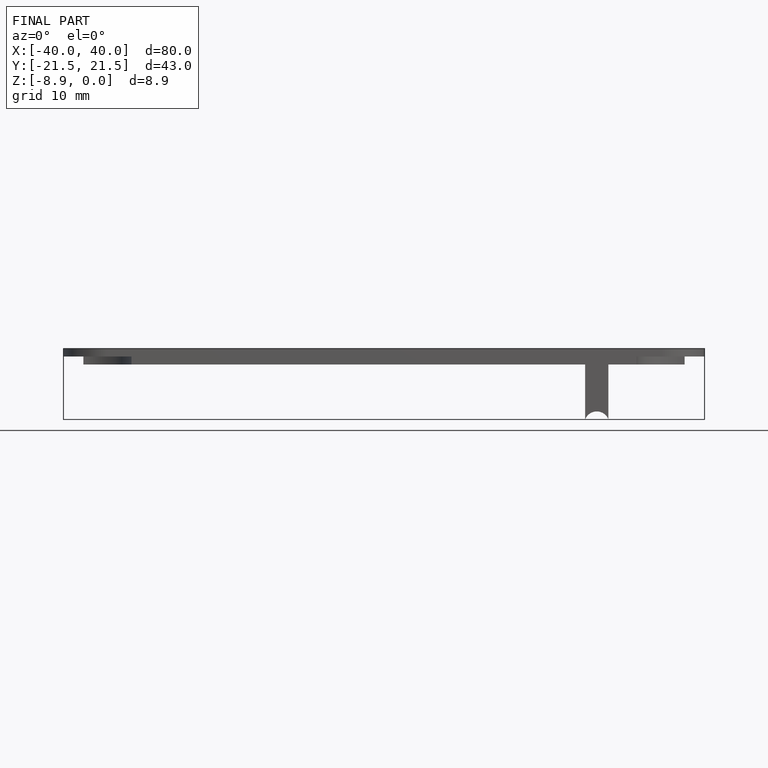
[diagram: finished part — front view with bounding-box wireframe]
